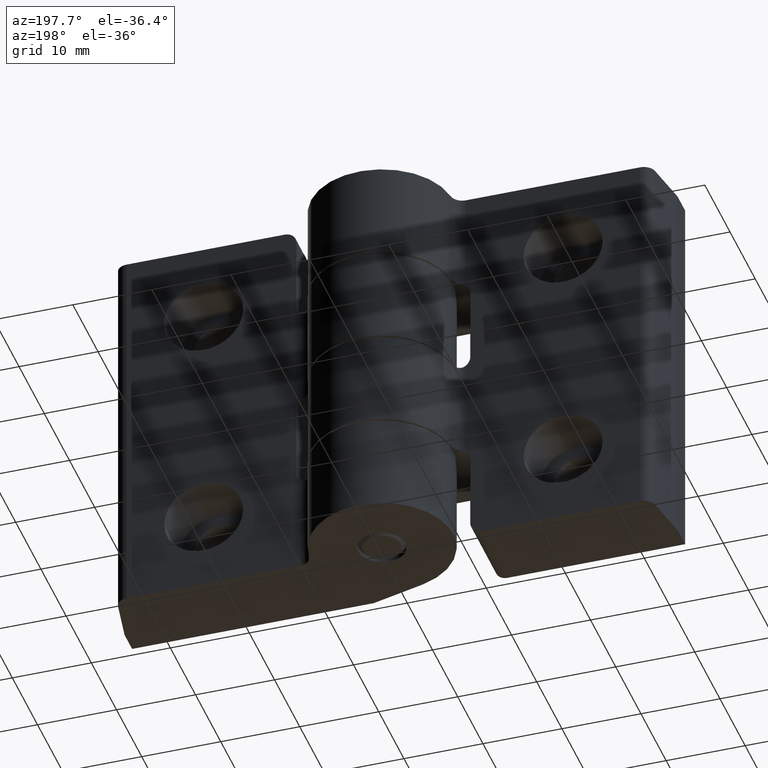
[diagram: clean part render]
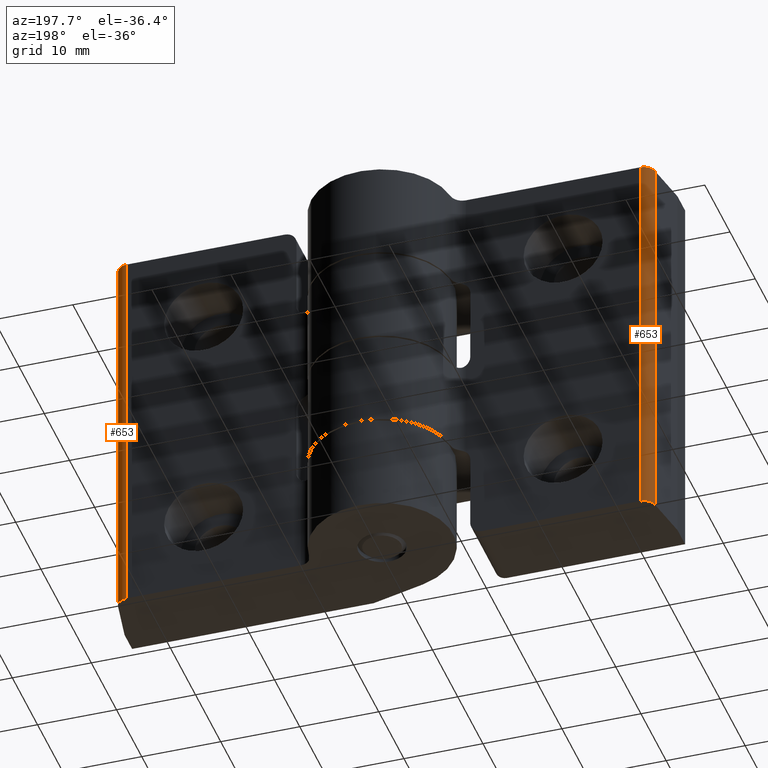
[diagram: same view with one multi-face feature highlighted, each face labeled with its STEP entity id]
A machine part, auxiliary view. The highlighted faces form ONE feature: a constant-radius fillet chain: 2 tangent blend faces with common blend radius 1.5 mm. The faces share edges in the B-rep.
Their STEP definitions:
[1] entity #653 (Cylinder):
#74=LINE('',#1202,#122);
#75=LINE('',#1206,#123);
#122=VECTOR('',#965,10.);
#123=VECTOR('',#970,10.);
#144=CYLINDRICAL_SURFACE('',#786,1.49996999999934);
#181=FACE_OUTER_BOUND('',#223,.T.);
#223=EDGE_LOOP('',(#553,#554,#555,#556));
#272=CIRCLE('',#784,1.49996999999934);
#273=CIRCLE('',#787,1.49996999999934);
#331=VERTEX_POINT('',#1192);
#332=VERTEX_POINT('',#1194);
#334=VERTEX_POINT('',#1200);
#335=VERTEX_POINT('',#1204);
#412=EDGE_CURVE('',#331,#332,#272,.T.);
#416=EDGE_CURVE('',#331,#334,#74,.T.);
#417=EDGE_CURVE('',#335,#334,#273,.T.);
#418=EDGE_CURVE('',#332,#335,#75,.T.);
#553=ORIENTED_EDGE('',*,*,#416,.T.);
#554=ORIENTED_EDGE('',*,*,#417,.F.);
#555=ORIENTED_EDGE('',*,*,#418,.F.);
#556=ORIENTED_EDGE('',*,*,#412,.F.);
#653=ADVANCED_FACE('',(#181),#144,.T.);
#784=AXIS2_PLACEMENT_3D('',#1195,#958,#959);
#786=AXIS2_PLACEMENT_3D('',#1203,#966,#967);
#787=AXIS2_PLACEMENT_3D('',#1205,#968,#969);
#958=DIRECTION('center_axis',(0.,0.,-1.));
#959=DIRECTION('ref_axis',(8.76095160189786E-6,0.999999999961623,0.));
#965=DIRECTION('',(0.,0.,1.));
#966=DIRECTION('center_axis',(0.,0.,1.));
#967=DIRECTION('ref_axis',(8.76095160189786E-6,0.999999999961623,0.));
#968=DIRECTION('center_axis',(0.,0.,1.));
#969=DIRECTION('ref_axis',(8.76095160189786E-6,0.999999999961623,0.));
#970=DIRECTION('',(0.,0.,1.));
#1192=CARTESIAN_POINT('',(-33.983987956595,-1.7394617168564,-25.));
#1194=CARTESIAN_POINT('',(-32.5068,-0.5,-25.));
#1195=CARTESIAN_POINT('Origin',(-32.5068131411646,-1.99996999994177,-25.));
#1200=CARTESIAN_POINT('',(-33.983987956595,-1.7394617168564,25.));
#1202=CARTESIAN_POINT('',(-33.983987956595,-1.7394617168564,0.));
#1203=CARTESIAN_POINT('Origin',(-32.5068131411646,-1.99996999994177,0.));
#1204=CARTESIAN_POINT('',(-32.5068,-0.5,25.));
#1205=CARTESIAN_POINT('Origin',(-32.5068131411646,-1.99996999994177,25.));
#1206=CARTESIAN_POINT('',(-32.5068,-0.5,0.));
[2] entity #653 (Cylinder):
#74=LINE('',#1202,#122);
#75=LINE('',#1206,#123);
#122=VECTOR('',#965,10.);
#123=VECTOR('',#970,10.);
#144=CYLINDRICAL_SURFACE('',#786,1.49996999999934);
#181=FACE_OUTER_BOUND('',#223,.T.);
#223=EDGE_LOOP('',(#553,#554,#555,#556));
#272=CIRCLE('',#784,1.49996999999934);
#273=CIRCLE('',#787,1.49996999999934);
#331=VERTEX_POINT('',#1192);
#332=VERTEX_POINT('',#1194);
#334=VERTEX_POINT('',#1200);
#335=VERTEX_POINT('',#1204);
#412=EDGE_CURVE('',#331,#332,#272,.T.);
#416=EDGE_CURVE('',#331,#334,#74,.T.);
#417=EDGE_CURVE('',#335,#334,#273,.T.);
#418=EDGE_CURVE('',#332,#335,#75,.T.);
#553=ORIENTED_EDGE('',*,*,#416,.T.);
#554=ORIENTED_EDGE('',*,*,#417,.F.);
#555=ORIENTED_EDGE('',*,*,#418,.F.);
#556=ORIENTED_EDGE('',*,*,#412,.F.);
#653=ADVANCED_FACE('',(#181),#144,.T.);
#784=AXIS2_PLACEMENT_3D('',#1195,#958,#959);
#786=AXIS2_PLACEMENT_3D('',#1203,#966,#967);
#787=AXIS2_PLACEMENT_3D('',#1205,#968,#969);
#958=DIRECTION('center_axis',(0.,0.,-1.));
#959=DIRECTION('ref_axis',(8.76095160189786E-6,0.999999999961623,0.));
#965=DIRECTION('',(0.,0.,1.));
#966=DIRECTION('center_axis',(0.,0.,1.));
#967=DIRECTION('ref_axis',(8.76095160189786E-6,0.999999999961623,0.));
#968=DIRECTION('center_axis',(0.,0.,1.));
#969=DIRECTION('ref_axis',(8.76095160189786E-6,0.999999999961623,0.));
#970=DIRECTION('',(0.,0.,1.));
#1192=CARTESIAN_POINT('',(-33.983987956595,-1.7394617168564,-25.));
#1194=CARTESIAN_POINT('',(-32.5068,-0.5,-25.));
#1195=CARTESIAN_POINT('Origin',(-32.5068131411646,-1.99996999994177,-25.));
#1200=CARTESIAN_POINT('',(-33.983987956595,-1.7394617168564,25.));
#1202=CARTESIAN_POINT('',(-33.983987956595,-1.7394617168564,0.));
#1203=CARTESIAN_POINT('Origin',(-32.5068131411646,-1.99996999994177,0.));
#1204=CARTESIAN_POINT('',(-32.5068,-0.5,25.));
#1205=CARTESIAN_POINT('Origin',(-32.5068131411646,-1.99996999994177,25.));
#1206=CARTESIAN_POINT('',(-32.5068,-0.5,0.));